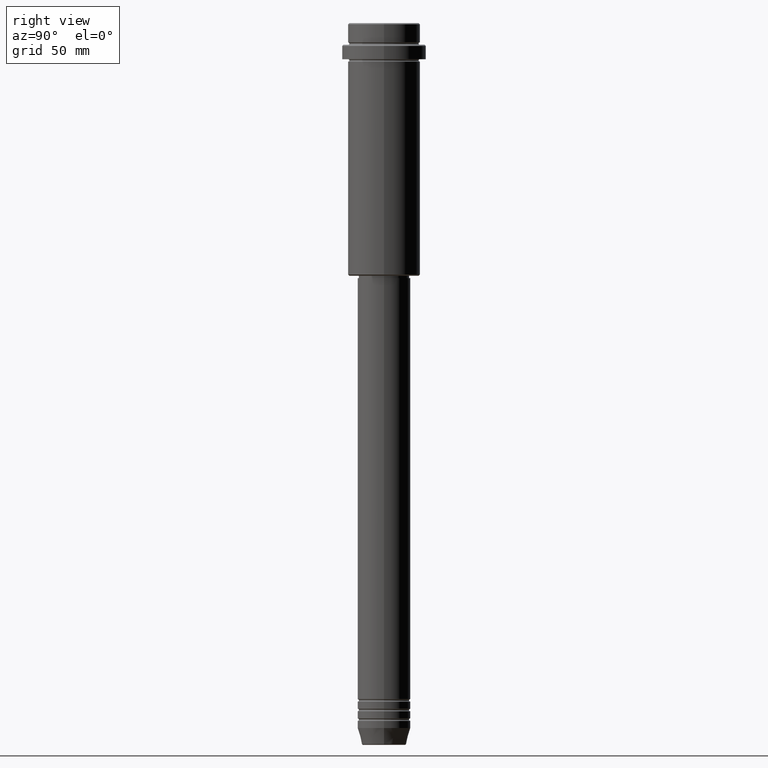
[diagram: clean part render]
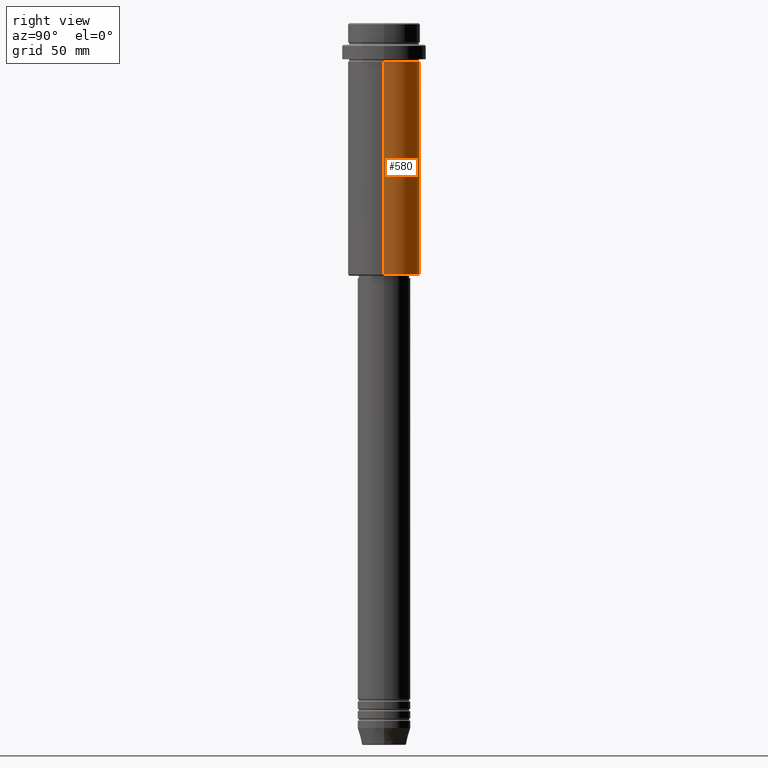
[diagram: same view with one face highlighted and labeled with its STEP entity id]
A machine part, right view. The second image highlights one B-rep face of the part: STEP entity #580.
In plain terms, the highlighted cylindrical surface (edge-blend (fillet) strip) has radius 15 mm, axis along (-0, -0, 1).
Its self-contained STEP definition (entity closure, byte-faithful):
#64 = DIRECTION ( 'NONE',  ( -0.000000000000000000, -0.000000000000000000, 1.000000000000000000 ) ) ;
#107 = ORIENTED_EDGE ( 'NONE', *, *, #1373, .F. ) ;
#108 = LINE ( 'NONE', #892, #381 ) ;
#122 = CIRCLE ( 'NONE', #1192, 15.00000000000000000 ) ;
#161 = CIRCLE ( 'NONE', #208, 15.00000000000000178 ) ;
#174 = AXIS2_PLACEMENT_3D ( 'NONE', #1334, #798, #1220 ) ;
#176 = CARTESIAN_POINT ( 'NONE',  ( -15.00000000000000000, 1.836970198721029589E-15, -104.4999999999999289 ) ) ;
#185 = DIRECTION ( 'NONE',  ( -0.000000000000000000, -0.000000000000000000, 1.000000000000000000 ) ) ;
#190 = CARTESIAN_POINT ( 'NONE',  ( 0.000000000000000000, 0.000000000000000000, -104.4999999999999289 ) ) ;
#208 = AXIS2_PLACEMENT_3D ( 'NONE', #392, #185, #516 ) ;
#361 = FACE_OUTER_BOUND ( 'NONE', #1261, .T. ) ;
#370 = VERTEX_POINT ( 'NONE', #395 ) ;
#381 = VECTOR ( 'NONE', #1416, 1000.000000000000000 ) ;
#392 = CARTESIAN_POINT ( 'NONE',  ( 0.000000000000000000, 0.000000000000000000, -16.00000000000000000 ) ) ;
#393 = VERTEX_POINT ( 'NONE', #176 ) ;
#395 = CARTESIAN_POINT ( 'NONE',  ( 15.00000000000000178, 0.000000000000000000, -16.00000000000000000 ) ) ;
#396 = EDGE_CURVE ( 'NONE', #548, #370, #1349, .T. ) ;
#416 = DIRECTION ( 'NONE',  ( -0.000000000000000000, -0.000000000000000000, 1.000000000000000000 ) ) ;
#474 = EDGE_CURVE ( 'NONE', #548, #393, #122, .T. ) ;
#516 = DIRECTION ( 'NONE',  ( 1.000000000000000000, 0.000000000000000000, 0.000000000000000000 ) ) ;
#522 = CARTESIAN_POINT ( 'NONE',  ( -15.00000000000000355, 1.836970198721029983E-15, -16.00000000000000000 ) ) ;
#548 = VERTEX_POINT ( 'NONE', #1160 ) ;
#580 = ADVANCED_FACE ( 'NONE', ( #361 ), #790, .T. ) ;
#686 = EDGE_CURVE ( 'NONE', #393, #1354, #108, .T. ) ;
#790 = CYLINDRICAL_SURFACE ( 'NONE', #174, 15.00000000000000000 ) ;
#798 = DIRECTION ( 'NONE',  ( -0.000000000000000000, -0.000000000000000000, 1.000000000000000000 ) ) ;
#892 = CARTESIAN_POINT ( 'NONE',  ( -15.00000000000000000, 1.836970198721029589E-15, 0.000000000000000000 ) ) ;
#1087 = ORIENTED_EDGE ( 'NONE', *, *, #474, .T. ) ;
#1125 = ORIENTED_EDGE ( 'NONE', *, *, #686, .T. ) ;
#1160 = CARTESIAN_POINT ( 'NONE',  ( 15.00000000000000000, 0.000000000000000000, -104.4999999999999289 ) ) ;
#1192 = AXIS2_PLACEMENT_3D ( 'NONE', #190, #416, #1290 ) ;
#1220 = DIRECTION ( 'NONE',  ( 1.000000000000000000, 0.000000000000000000, 0.000000000000000000 ) ) ;
#1239 = VECTOR ( 'NONE', #64, 1000.000000000000000 ) ;
#1261 = EDGE_LOOP ( 'NONE', ( #1087, #1125, #107, #1379 ) ) ;
#1290 = DIRECTION ( 'NONE',  ( -1.000000000000000000, 0.000000000000000000, 0.000000000000000000 ) ) ;
#1334 = CARTESIAN_POINT ( 'NONE',  ( 0.000000000000000000, 0.000000000000000000, 0.000000000000000000 ) ) ;
#1349 = LINE ( 'NONE', #1372, #1239 ) ;
#1354 = VERTEX_POINT ( 'NONE', #522 ) ;
#1372 = CARTESIAN_POINT ( 'NONE',  ( 15.00000000000000000, 0.000000000000000000, 0.000000000000000000 ) ) ;
#1373 = EDGE_CURVE ( 'NONE', #370, #1354, #161, .T. ) ;
#1379 = ORIENTED_EDGE ( 'NONE', *, *, #396, .F. ) ;
#1416 = DIRECTION ( 'NONE',  ( -0.000000000000000000, -0.000000000000000000, 1.000000000000000000 ) ) ;